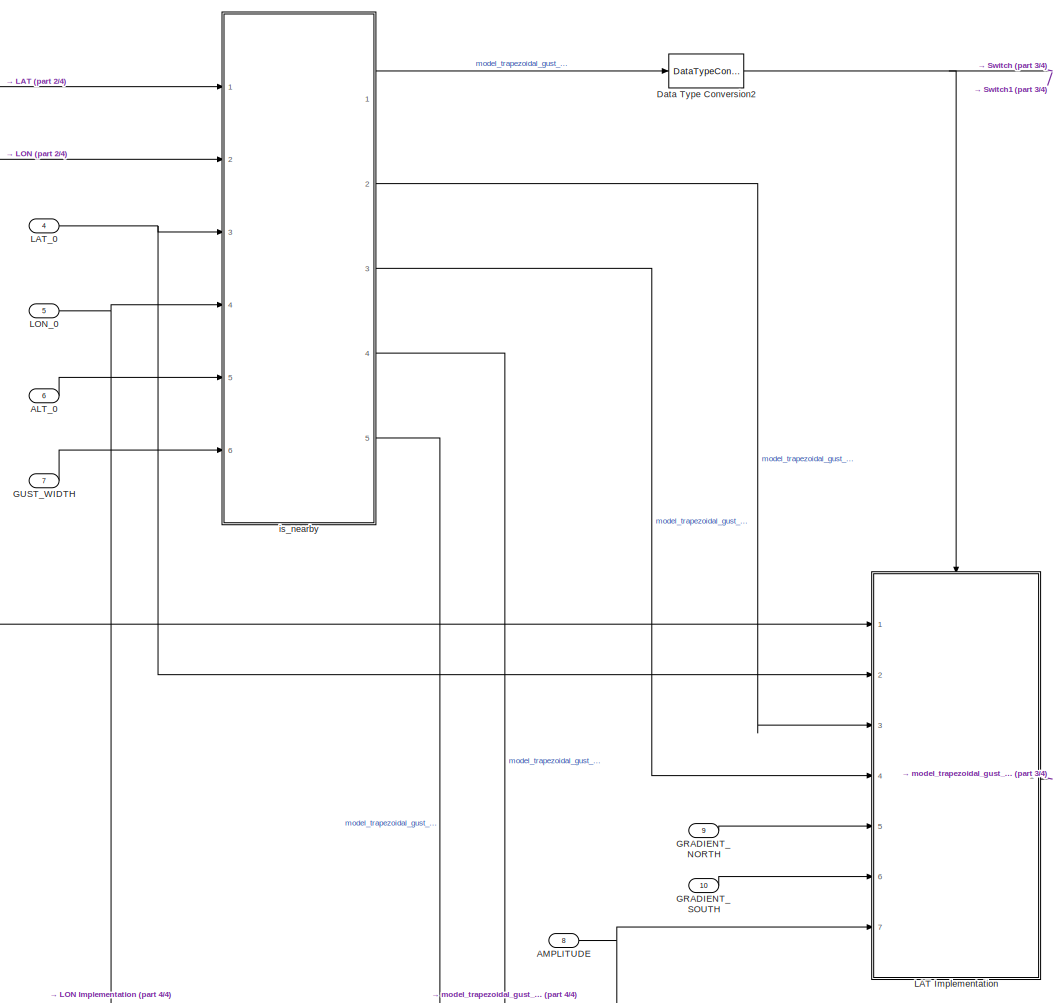
[diagram: root canvas - part 1/4, central region]
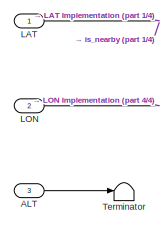
[diagram: root canvas - part 2/4, top left region]
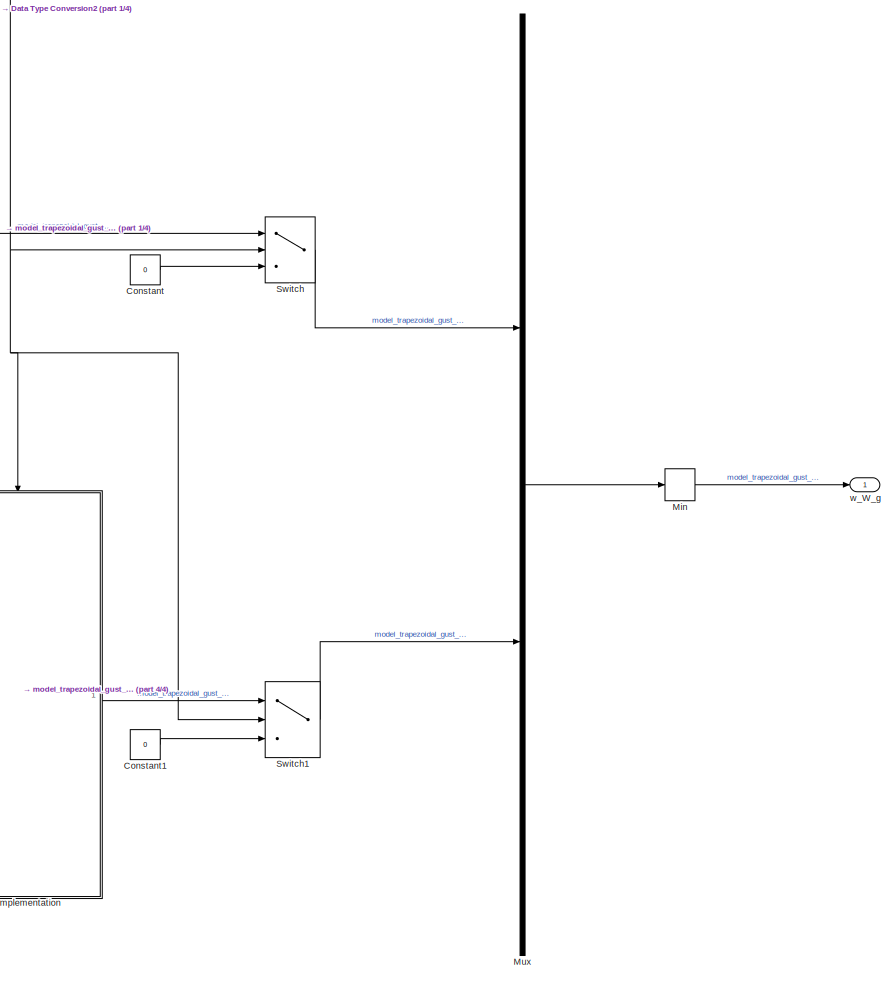
[diagram: root canvas - part 3/4, bottom right region]
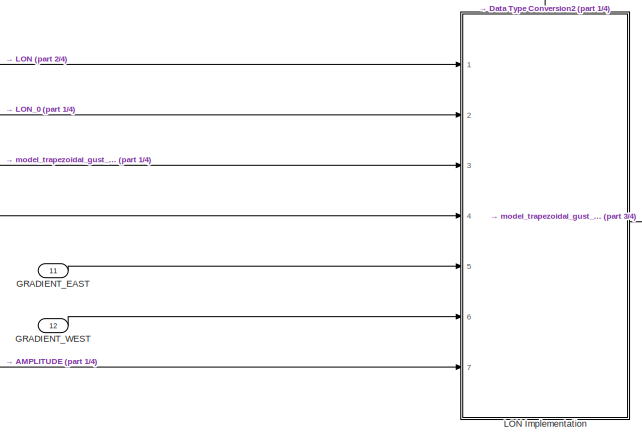
[diagram: root canvas - part 4/4, bottom center region]
MODEL slx_9f45f575d669
KIND model
BLOCK [Inport] ALT
  OutDataTypeStr = double
  Port = 3
BLOCK [Inport] ALT_0
  OutDataTypeStr = double
  Port = 6
BLOCK [Inport] AMPLITUDE
  OutDataTypeStr = double
  Port = 8
BLOCK [Constant] Constant
  Value = 0
BLOCK [Constant] Constant1
  Value = 0
BLOCK [DataTypeConversion] Data Type Conversion2
  OutDataTypeStr = boolean
  RndMeth = Floor
  SaturateOnIntegerOverflow = off
BLOCK [Inport] GRADIENT_EAST
  OutDataTypeStr = double
  Port = 11
BLOCK [Inport] GRADIENT_NORTH
  OutDataTypeStr = double
  Port = 9
BLOCK [Inport] GRADIENT_SOUTH
  OutDataTypeStr = double
  Port = 10
BLOCK [Inport] GRADIENT_WEST
  OutDataTypeStr = double
  Port = 12
BLOCK [Inport] GUST_WIDTH
  OutDataTypeStr = double
  Port = 7
BLOCK [Inport] LAT
  OutDataTypeStr = double
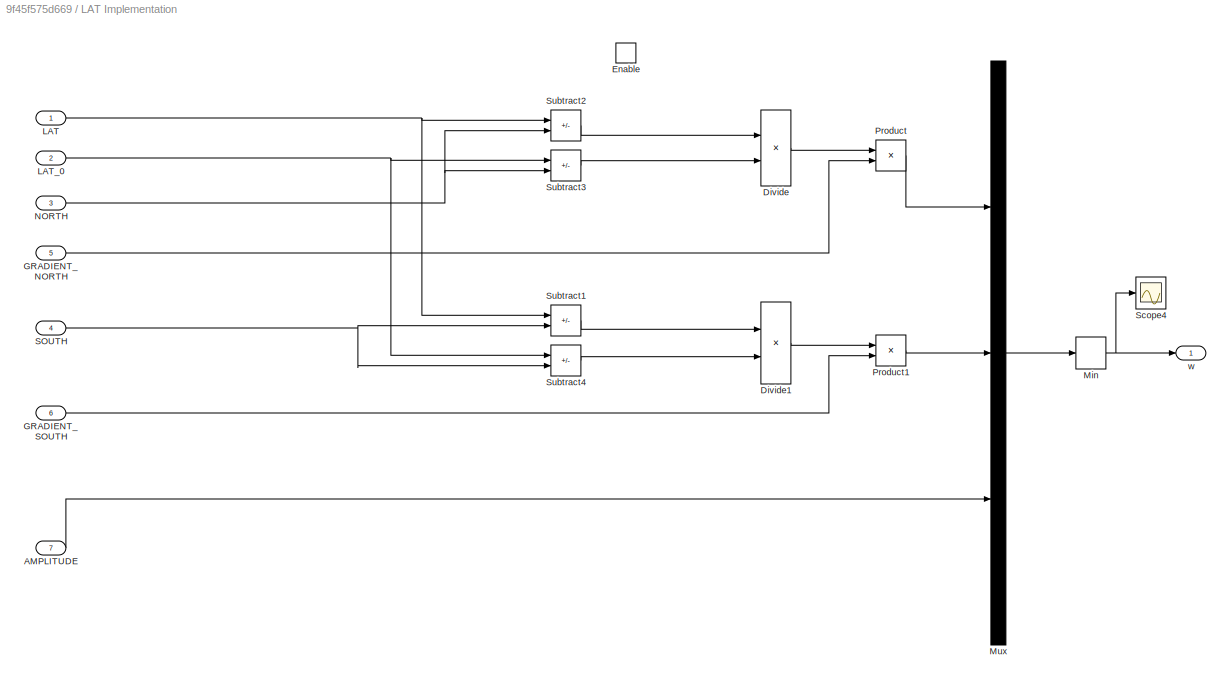
BLOCK [SubSystem] LAT Implementation
  Ports = [7, 1, 1]
  RequestExecContextInheritance = off
  TreatAsAtomicUnit = on
BLOCK [Inport] LAT Implementation/AMPLITUDE
  OutDataTypeStr = double
  Port = 7
BLOCK [Product] LAT Implementation/Divide
  Inputs = */
  Ports = [2, 1]
BLOCK [Product] LAT Implementation/Divide1
  Inputs = */
  Ports = [2, 1]
BLOCK [EnablePort] LAT Implementation/Enable
  Ports = []
BLOCK [Inport] LAT Implementation/GRADIENT_NORTH
  OutDataTypeStr = double
  Port = 5
BLOCK [Inport] LAT Implementation/GRADIENT_SOUTH
  OutDataTypeStr = double
  Port = 6
BLOCK [Inport] LAT Implementation/LAT
  OutDataTypeStr = double
BLOCK [Inport] LAT Implementation/LAT_0
  OutDataTypeStr = double
  Port = 2
BLOCK [MinMax] LAT Implementation/Min
  Ports = [1, 1]
BLOCK [Mux] LAT Implementation/Mux
  DisplayOption = bar
  Inputs = 3
  Ports = [3, 1]
BLOCK [Inport] LAT Implementation/NORTH
  OutDataTypeStr = double
  Port = 3
BLOCK [Product] LAT Implementation/Product
  Ports = [2, 1]
BLOCK [Product] LAT Implementation/Product1
  Ports = [2, 1]
BLOCK [Inport] LAT Implementation/SOUTH
  OutDataTypeStr = double
  Port = 4
BLOCK [Scope] LAT Implementation/Scope4
  Floating = off
  NumInputPorts = 1
  Ports = [1]
  ScopeSpecificationString = Simulink.scopes.TimeScopeBlockCfg('CurrentConfiguration', extmgr.ConfigurationSet(extmgr.Configuration('Core','General UI',true),extmgr.Configuration('Core','Source UI',true),extmgr.Configuration('Sources','WiredSimulink',true,'DataLoggingVariableName','ScopeData3'),extmgr.Configuration('Visuals','Time Domain',true,'SerializedDisplays',{struct('MinYLimReal','-1.23682','MaxYLimReal','11.24854','YLa...<+1391ch>
BLOCK [Sum] LAT Implementation/Subtract1
  IconShape = rectangular
  Inputs = +-
  Ports = [2, 1]
BLOCK [Sum] LAT Implementation/Subtract2
  IconShape = rectangular
  Inputs = +-
  Ports = [2, 1]
BLOCK [Sum] LAT Implementation/Subtract3
  IconShape = rectangular
  Inputs = +-
  Ports = [2, 1]
BLOCK [Sum] LAT Implementation/Subtract4
  IconShape = rectangular
  Inputs = +-
  Ports = [2, 1]
BLOCK [Outport] LAT Implementation/w
  OutDataTypeStr = double
BLOCK [Inport] LAT_0
  OutDataTypeStr = double
  Port = 4
BLOCK [Inport] LON
  OutDataTypeStr = double
  Port = 2
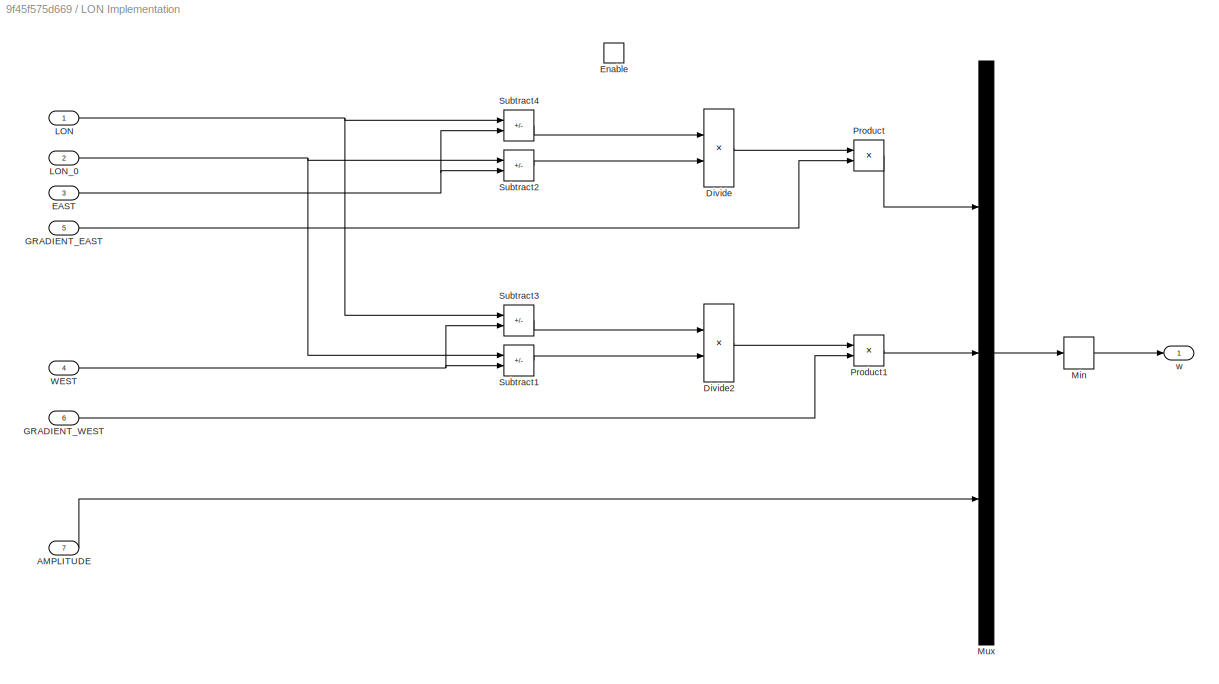
BLOCK [SubSystem] LON Implementation
  Ports = [7, 1, 1]
  RequestExecContextInheritance = off
  TreatAsAtomicUnit = on
BLOCK [Inport] LON Implementation/AMPLITUDE
  OutDataTypeStr = double
  Port = 7
BLOCK [Product] LON Implementation/Divide
  Inputs = */
  Ports = [2, 1]
BLOCK [Product] LON Implementation/Divide2
  Inputs = */
  Ports = [2, 1]
BLOCK [Inport] LON Implementation/EAST
  OutDataTypeStr = double
  Port = 3
BLOCK [EnablePort] LON Implementation/Enable
  Ports = []
BLOCK [Inport] LON Implementation/GRADIENT_EAST
  OutDataTypeStr = double
  Port = 5
BLOCK [Inport] LON Implementation/GRADIENT_WEST
  OutDataTypeStr = double
  Port = 6
BLOCK [Inport] LON Implementation/LON
  OutDataTypeStr = double
BLOCK [Inport] LON Implementation/LON_0
  OutDataTypeStr = double
  Port = 2
BLOCK [MinMax] LON Implementation/Min
  Ports = [1, 1]
BLOCK [Mux] LON Implementation/Mux
  DisplayOption = bar
  Inputs = 3
  Ports = [3, 1]
BLOCK [Product] LON Implementation/Product
  Ports = [2, 1]
BLOCK [Product] LON Implementation/Product1
  Ports = [2, 1]
BLOCK [Sum] LON Implementation/Subtract1
  IconShape = rectangular
  Inputs = +-
  Ports = [2, 1]
BLOCK [Sum] LON Implementation/Subtract2
  IconShape = rectangular
  Inputs = +-
  Ports = [2, 1]
BLOCK [Sum] LON Implementation/Subtract3
  IconShape = rectangular
  Inputs = +-
  Ports = [2, 1]
BLOCK [Sum] LON Implementation/Subtract4
  IconShape = rectangular
  Inputs = +-
  Ports = [2, 1]
BLOCK [Inport] LON Implementation/WEST
  OutDataTypeStr = double
  Port = 4
BLOCK [Outport] LON Implementation/w
  OutDataTypeStr = double
BLOCK [Inport] LON_0
  OutDataTypeStr = double
  Port = 5
BLOCK [MinMax] Min
  Ports = [1, 1]
BLOCK [Mux] Mux
  DisplayOption = bar
  Inputs = 2
  Ports = [2, 1]
BLOCK [Switch] Switch
  Criteria = u2 ~= 0
  InputSameDT = off
  OutDataTypeStr = double
  SaturateOnIntegerOverflow = off
BLOCK [Switch] Switch1
  Criteria = u2 ~= 0
  InputSameDT = off
  OutDataTypeStr = double
  SaturateOnIntegerOverflow = off
BLOCK [Terminator] Terminator
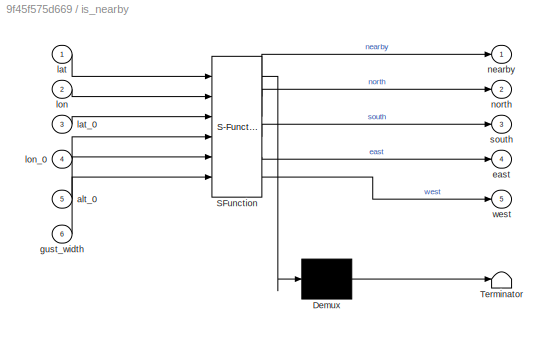
BLOCK [SubSystem] is_nearby
  ErrorFcn = Stateflow.Translate.translate
  PermitHierarchicalResolution = ExplicitOnly
  Ports = [6, 5]
  RequestExecContextInheritance = off
  SFBlockType = MATLAB Function
  TreatAsAtomicUnit = on
BLOCK [Demux] is_nearby/ Demux 
  Outputs = 1
  Ports = [1, 1]
BLOCK [S-Function] is_nearby/ SFunction 
  EnableBusSupport = on
  FunctionName = sf_sfun
  PortCounts = [6 6]
  Ports = [6, 6]
  SFcnIsStateOwnerBlock = off
  SFunctionDeploymentMode = off
  Tag = Stateflow S-Function 2
BLOCK [Terminator] is_nearby/ Terminator 
BLOCK [Inport] is_nearby/alt_0
  Port = 5
BLOCK [Outport] is_nearby/east
  Port = 4
BLOCK [Inport] is_nearby/gust_width
  Port = 6
BLOCK [Inport] is_nearby/lat
BLOCK [Inport] is_nearby/lat_0
  Port = 3
BLOCK [Inport] is_nearby/lon
  Port = 2
BLOCK [Inport] is_nearby/lon_0
  Port = 4
BLOCK [Outport] is_nearby/nearby
BLOCK [Outport] is_nearby/north
  Port = 2
BLOCK [Outport] is_nearby/south
  Port = 3
BLOCK [Outport] is_nearby/west
  Port = 5
BLOCK [Outport] w_W_g
  OutDataTypeStr = double
  SignalName = w_W_g
LINE ALT:1 -> Terminator:1
LINE ALT_0:1 -> is_nearby:5
NET AMPLITUDE:1 -> LAT Implementation:7, LON Implementation:7
LINE Constant1:1 -> Switch1:3
LINE Constant:1 -> Switch:3
NET Data Type Conversion2:1 -> LAT Implementation:enable, LON Implementation:enable, Switch1:2, Switch:2
LINE GRADIENT_EAST:1 -> LON Implementation:5
LINE GRADIENT_NORTH:1 -> LAT Implementation:5
LINE GRADIENT_SOUTH:1 -> LAT Implementation:6
LINE GRADIENT_WEST:1 -> LON Implementation:6
LINE GUST_WIDTH:1 -> is_nearby:6
LINE LAT Implementation/AMPLITUDE:1 -> LAT Implementation/Mux:3
LINE LAT Implementation/Divide1:1 -> LAT Implementation/Product1:1
LINE LAT Implementation/Divide:1 -> LAT Implementation/Product:1
LINE LAT Implementation/GRADIENT_NORTH:1 -> LAT Implementation/Product:2
LINE LAT Implementation/GRADIENT_SOUTH:1 -> LAT Implementation/Product1:2
NET LAT Implementation/LAT:1 -> LAT Implementation/Subtract1:1, LAT Implementation/Subtract2:1
NET LAT Implementation/LAT_0:1 -> LAT Implementation/Subtract3:1, LAT Implementation/Subtract4:1
NET LAT Implementation/Min:1 -> LAT Implementation/Scope4:1, LAT Implementation/w:1
LINE LAT Implementation/Mux:1 -> LAT Implementation/Min:1
NET LAT Implementation/NORTH:1 -> LAT Implementation/Subtract2:2, LAT Implementation/Subtract3:2
LINE LAT Implementation/Product1:1 -> LAT Implementation/Mux:2
LINE LAT Implementation/Product:1 -> LAT Implementation/Mux:1
NET LAT Implementation/SOUTH:1 -> LAT Implementation/Subtract1:2, LAT Implementation/Subtract4:2
LINE LAT Implementation/Subtract1:1 -> LAT Implementation/Divide1:1
LINE LAT Implementation/Subtract2:1 -> LAT Implementation/Divide:1
LINE LAT Implementation/Subtract3:1 -> LAT Implementation/Divide:2
LINE LAT Implementation/Subtract4:1 -> LAT Implementation/Divide1:2
LINE LAT Implementation:1 -> Switch:1
NET LAT:1 -> LAT Implementation:1, is_nearby:1
NET LAT_0:1 -> LAT Implementation:2, is_nearby:3
LINE LON Implementation/AMPLITUDE:1 -> LON Implementation/Mux:3
LINE LON Implementation/Divide2:1 -> LON Implementation/Product1:1
LINE LON Implementation/Divide:1 -> LON Implementation/Product:1
NET LON Implementation/EAST:1 -> LON Implementation/Subtract2:2, LON Implementation/Subtract4:2
LINE LON Implementation/GRADIENT_EAST:1 -> LON Implementation/Product:2
LINE LON Implementation/GRADIENT_WEST:1 -> LON Implementation/Product1:2
NET LON Implementation/LON:1 -> LON Implementation/Subtract3:1, LON Implementation/Subtract4:1
NET LON Implementation/LON_0:1 -> LON Implementation/Subtract1:1, LON Implementation/Subtract2:1
LINE LON Implementation/Min:1 -> LON Implementation/w:1
LINE LON Implementation/Mux:1 -> LON Implementation/Min:1
LINE LON Implementation/Product1:1 -> LON Implementation/Mux:2
LINE LON Implementation/Product:1 -> LON Implementation/Mux:1
LINE LON Implementation/Subtract1:1 -> LON Implementation/Divide2:2
LINE LON Implementation/Subtract2:1 -> LON Implementation/Divide:2
LINE LON Implementation/Subtract3:1 -> LON Implementation/Divide2:1
LINE LON Implementation/Subtract4:1 -> LON Implementation/Divide:1
NET LON Implementation/WEST:1 -> LON Implementation/Subtract1:2, LON Implementation/Subtract3:2
LINE LON Implementation:1 -> Switch1:1
NET LON:1 -> LON Implementation:1, is_nearby:2
NET LON_0:1 -> LON Implementation:2, is_nearby:4
LINE Min:1 -> w_W_g:1
LINE Mux:1 -> Min:1
LINE Switch1:1 -> Mux:2
LINE Switch:1 -> Mux:1
LINE is_nearby:1 -> Data Type Conversion2:1
LINE is_nearby:2 -> LAT Implementation:3
LINE is_nearby:3 -> LAT Implementation:4
LINE is_nearby:4 -> LON Implementation:3
LINE is_nearby:5 -> LON Implementation:4
note: NET lines group one-source signal fan-out (src -> all destinations, sorted); 1:1 wires keep LINE
CHART is_nearby states=1 transitions=1
  STATE_LABEL 'eML_blk_kernel()'
  STATE_LABEL 'SCRIPT:\nfunction [nearby, north, south, east, west] = is_nearby(lat, lon, lat_0, lon_0, alt_0, gust_width)\n    % Input:\n    % [lat] = rad\n    % [lon] = rad\n    % [lat_0] = rad\n    % [lon_0] = rad\n    % [alt_0] = m\n    % [gust_width] = m\n    % Independet of altitude, phenomena is available on all heights,\n    % because otherwise height distribution is needed\n\n    % Output:\n    % [nearby] = -\n    % ...<+1331ch>'
CHART  states=0 transitions=0
